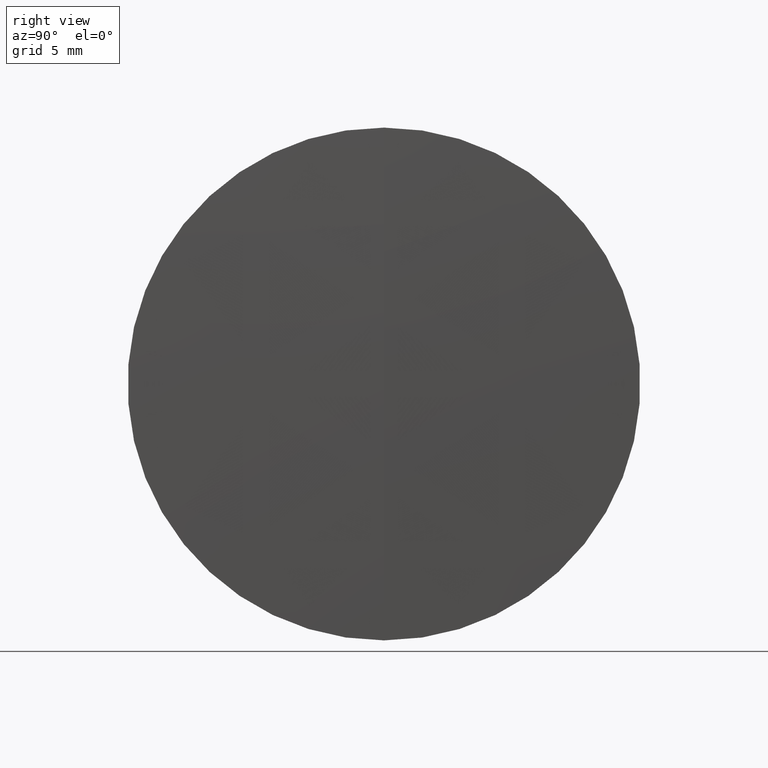
[diagram: clean part render]
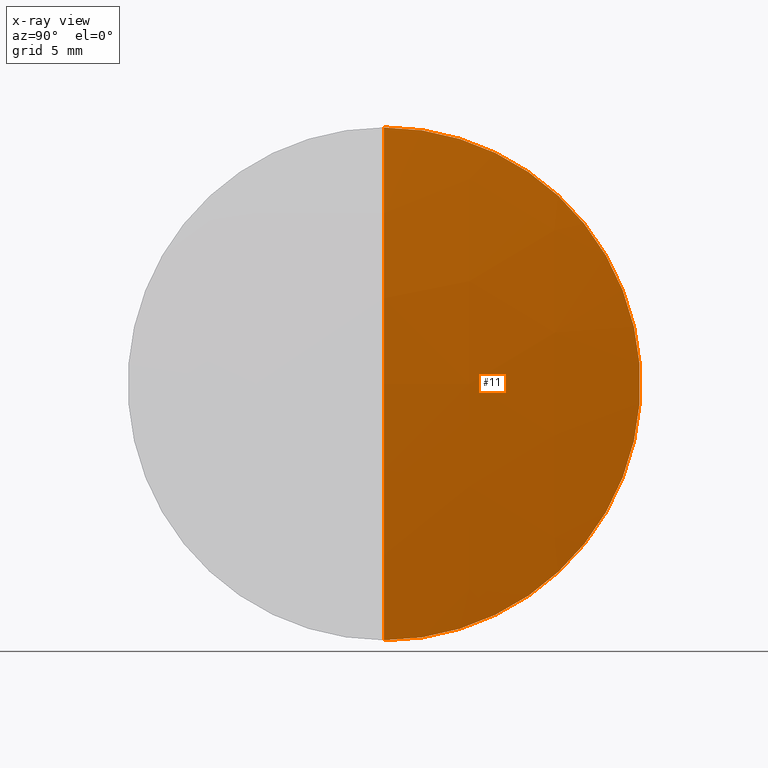
[diagram: x-ray — body ghosted, one internal face saturated and labeled with its STEP entity id]
A machine part, right view, then the same camera in x-ray: the body is ghosted and one INTERNAL B-rep face — a face not visible from any outside direction — is saturated and labeled: STEP entity #11.
In plain terms, the highlighted spherical surface has radius 127.78 mm.
Its self-contained STEP definition (entity closure, byte-faithful):
#11 = ADVANCED_FACE ( 'NONE', ( #218 ), #308, .T. ) ;
#27 = CIRCLE ( 'NONE', #282, 127.7800000000000300 ) ;
#31 = CARTESIAN_POINT ( 'NONE',  ( 142.0467968014847300, 1.530808498934191500E-015, -12.50000000000000000 ) ) ;
#55 = AXIS2_PLACEMENT_3D ( 'NONE', #134, #283, #341 ) ;
#58 = DIRECTION ( 'NONE',  ( 0.0000000000000000000, 0.0000000000000000000, 1.000000000000000000 ) ) ;
#65 = CIRCLE ( 'NONE', #91, 12.50000000000000000 ) ;
#69 = EDGE_CURVE ( 'NONE', #88, #312, #162, .T. ) ;
#88 = VERTEX_POINT ( 'NONE', #305 ) ;
#91 = AXIS2_PLACEMENT_3D ( 'NONE', #92, #285, #58 ) ;
#92 = CARTESIAN_POINT ( 'NONE',  ( 142.0467968014847300, 0.0000000000000000000, 0.0000000000000000000 ) ) ;
#104 = ORIENTED_EDGE ( 'NONE', *, *, #226, .F. ) ;
#134 = CARTESIAN_POINT ( 'NONE',  ( 14.87966897357473400, 0.0000000000000000000, 1.355252715606880500E-017 ) ) ;
#147 = DIRECTION ( 'NONE',  ( 0.0000000000000000000, 0.0000000000000000000, 1.000000000000000000 ) ) ;
#156 = CARTESIAN_POINT ( 'NONE',  ( 142.0467968014847300, 0.0000000000000000000, 12.50000000000000000 ) ) ;
#159 = EDGE_CURVE ( 'NONE', #88, #180, #27, .T. ) ;
#162 = CIRCLE ( 'NONE', #55, 127.7800000000000300 ) ;
#178 = DIRECTION ( 'NONE',  ( 0.0000000000000000000, -1.224646799147353500E-016, 1.000000000000000000 ) ) ;
#180 = VERTEX_POINT ( 'NONE', #31 ) ;
#202 = ORIENTED_EDGE ( 'NONE', *, *, #159, .T. ) ;
#213 = AXIS2_PLACEMENT_3D ( 'NONE', #238, #240, #147 ) ;
#218 = FACE_OUTER_BOUND ( 'NONE', #235, .T. ) ;
#226 = EDGE_CURVE ( 'NONE', #312, #180, #65, .T. ) ;
#235 = EDGE_LOOP ( 'NONE', ( #295, #202, #104 ) ) ;
#238 = CARTESIAN_POINT ( 'NONE',  ( 14.87966897357473400, 0.0000000000000000000, 1.355252715606880500E-017 ) ) ;
#240 = DIRECTION ( 'NONE',  ( 0.0000000000000000000, 1.000000000000000000, 0.0000000000000000000 ) ) ;
#269 = CARTESIAN_POINT ( 'NONE',  ( 14.87966897357473400, 0.0000000000000000000, 1.355252715606880500E-017 ) ) ;
#282 = AXIS2_PLACEMENT_3D ( 'NONE', #269, #304, #178 ) ;
#283 = DIRECTION ( 'NONE',  ( 0.0000000000000000000, -1.000000000000000000, 0.0000000000000000000 ) ) ;
#285 = DIRECTION ( 'NONE',  ( -1.000000000000000000, -0.0000000000000000000, -0.0000000000000000000 ) ) ;
#295 = ORIENTED_EDGE ( 'NONE', *, *, #69, .F. ) ;
#304 = DIRECTION ( 'NONE',  ( -0.0000000000000000000, 1.000000000000000000, 1.224646799147353200E-016 ) ) ;
#305 = CARTESIAN_POINT ( 'NONE',  ( 142.6596689735747500, 0.0000000000000000000, 7.837820926908511600E-015 ) ) ;
#308 = SPHERICAL_SURFACE ( 'NONE', #213, 127.7800000000000300 ) ;
#312 = VERTEX_POINT ( 'NONE', #156 ) ;
#341 = DIRECTION ( 'NONE',  ( 0.0000000000000000000, 0.0000000000000000000, -1.000000000000000000 ) ) ;